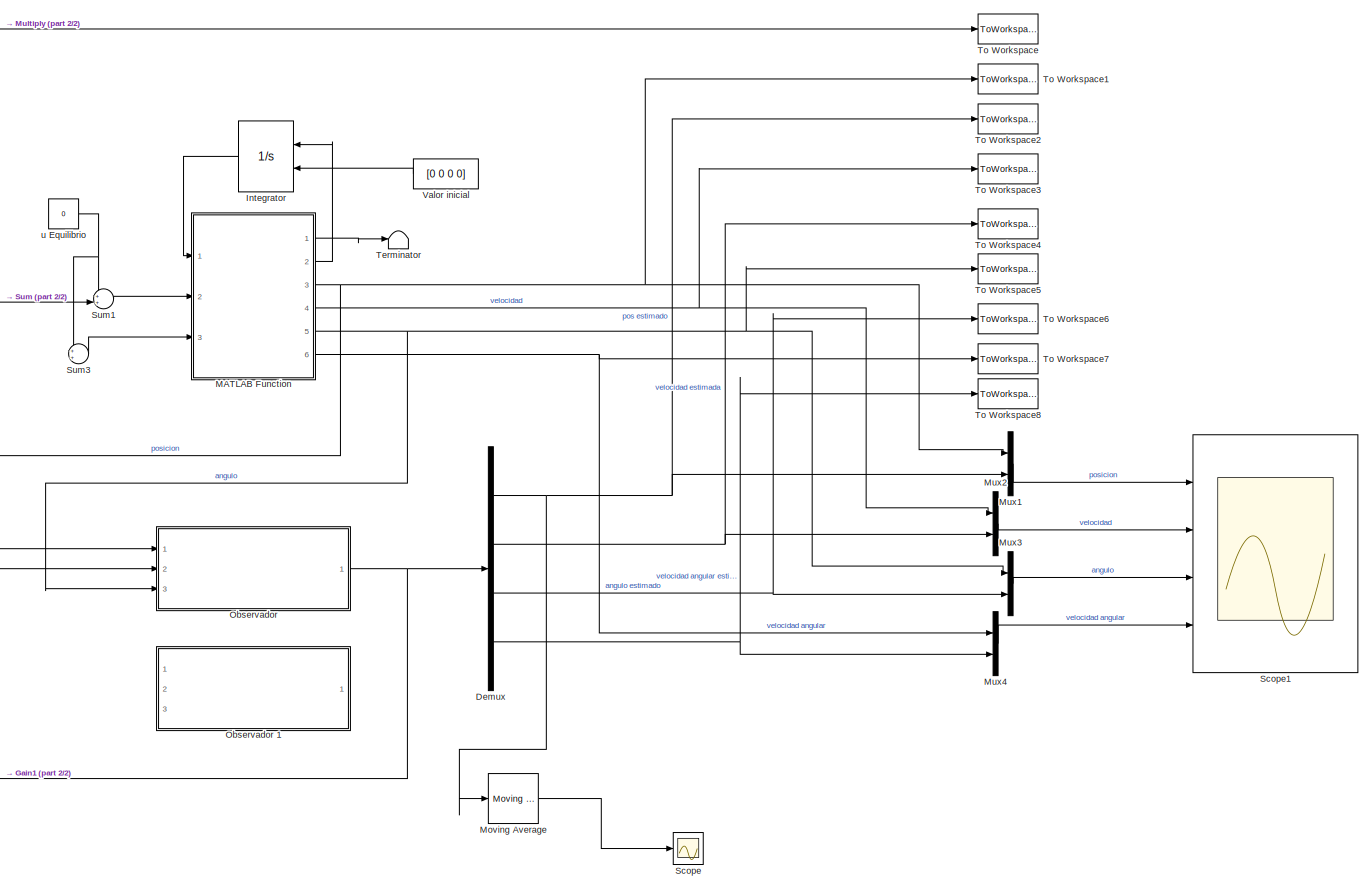
[diagram: root canvas - part 1/2, right side, full height]
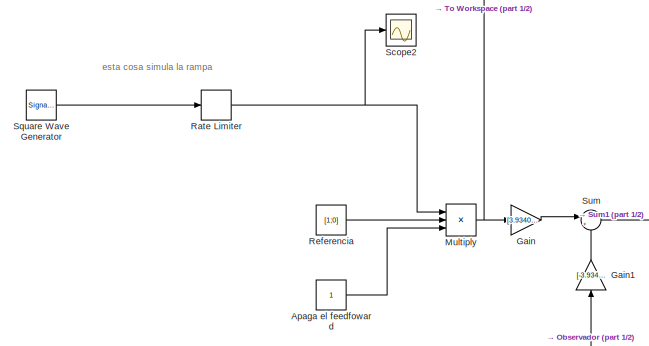
[diagram: root canvas - part 2/2, top left region]
MODEL slx_c159672f334e
KIND model
CONFIG AbsTol = auto
CONFIG EnableMultiTasking = off
CONFIG FixedStep = 0.02
CONFIG MaxStep = auto
CONFIG MinStep = auto
CONFIG RelTol = 1e-3
CONFIG SampleTimeConstraint = Unconstrained
CONFIG Solver = ode4
CONFIG SolverName = ode4
CONFIG StartTime = 0.0
CONFIG StopTime = 10
BLOCK [Constant] Apaga el feedfoward
BLOCK [Demux] Demux
  Ports = [1, 4]
BLOCK [Gain] Gain
  Gain = [3.9340 0]
  Multiplication = Matrix(K*u)
BLOCK [Gain] Gain1
  Gain = [-3.9340, -0.9499, -0.8737, -0.0781]
  Multiplication = Matrix(K*u)
BLOCK [Integrator] Integrator
  InitialConditionSource = external
  Ports = [2, 1]
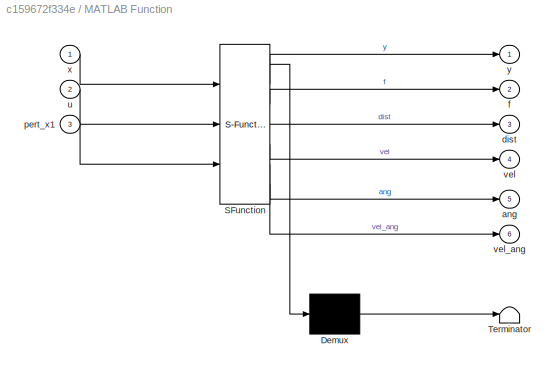
BLOCK [SubSystem] MATLAB Function
  ErrorFcn = Stateflow.Translate.translate
  PermitHierarchicalResolution = ExplicitOnly
  Ports = [3, 6]
  SFBlockType = MATLAB Function
  TreatAsAtomicUnit = on
BLOCK [Demux] MATLAB Function/ Demux 
  Outputs = 1
  Ports = [1, 1]
BLOCK [S-Function] MATLAB Function/ SFunction 
  EnableBusSupport = on
  FunctionName = sf_sfun
  PortCounts = [3 7]
  Ports = [3, 7]
  SFcnIsStateOwnerBlock = off
  SFunctionDeploymentMode = off
  Tag = Stateflow S-Function simulink_Feedback_con_y_sin_feedthrough_2017a 2
BLOCK [Terminator] MATLAB Function/ Terminator 
BLOCK [Outport] MATLAB Function/ang
  Port = 5
BLOCK [Outport] MATLAB Function/dist
  Port = 3
BLOCK [Outport] MATLAB Function/f
  Port = 2
BLOCK [Inport] MATLAB Function/pert_x1
  Port = 3
BLOCK [Inport] MATLAB Function/u
  Port = 2
BLOCK [Outport] MATLAB Function/vel
  Port = 4
BLOCK [Outport] MATLAB Function/vel_ang
  Port = 6
BLOCK [Inport] MATLAB Function/x
BLOCK [Outport] MATLAB Function/y
BLOCK [Reference] Moving Average  REF=dspstat3/Moving
Average
  Ports = [1, 1]
  SourceBlock = dspstat3/Moving\nAverage
  SourceType = dsp.simulink.MovingAverage
BLOCK [Product] Multiply
  Inputs = 3
  Ports = [3, 1]
BLOCK [Mux] Mux1
  DisplayOption = bar
  Inputs = 2
  Ports = [2, 1]
BLOCK [Mux] Mux2
  DisplayOption = bar
  Inputs = 2
  Ports = [2, 1]
BLOCK [Mux] Mux3
  DisplayOption = bar
  Inputs = 2
  Ports = [2, 1]
BLOCK [Mux] Mux4
  DisplayOption = bar
  Inputs = 2
  Ports = [2, 1]
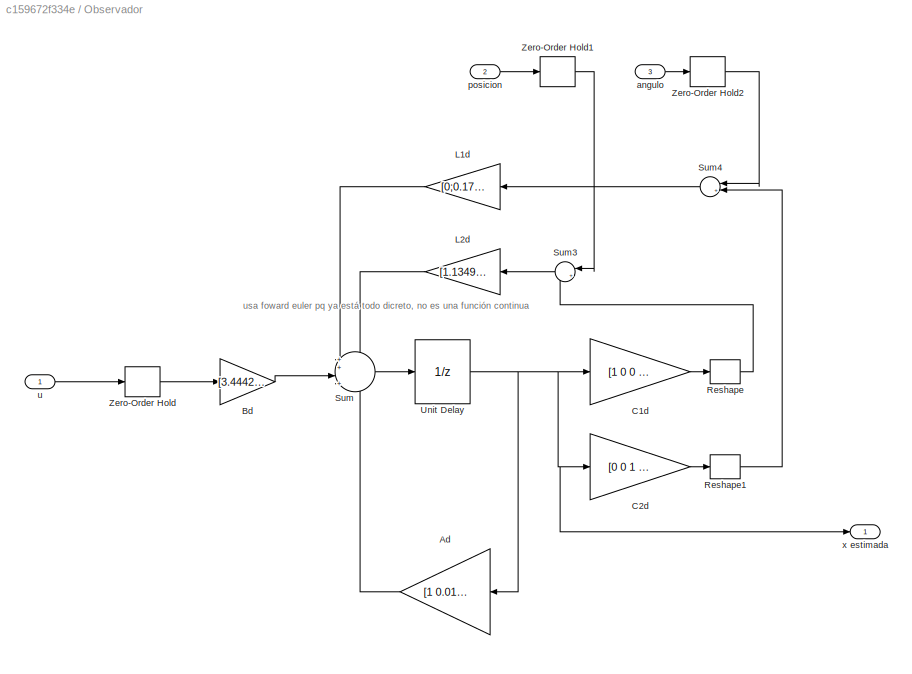
BLOCK [SubSystem] Observador 
  Ports = [3, 1]
BLOCK [Gain] Observador /Ad
  Gain = [1 0.0192570828996483 0.00170448697227250 1.03558375157804e-05;0 0.926639757552132 0.167521537510989 0.00148970690219522;0 0 0.973102548548734 0.0162030728429044;0 0 -2.50301828662619 0.637050817786896]
  Multiplication = Matrix(K*u)
BLOCK [Gain] Observador /Bd
  Gain = [3.44428611496063e-06;0.000671990296398989;0.0112985384629050;1.05141739677607]
  Multiplication = Matrix(K*u)
BLOCK [Gain] Observador /C1d
  Gain = [1 0 0 0]
  Multiplication = Matrix(K*u)
BLOCK [Gain] Observador /C2d
  Gain = [0 0 1 0]
  Multiplication = Matrix(K*u)
BLOCK [Gain] Observador /L1d
  Gain = [0;0.175600000000000;0.796300000000000;-1.30040000000000]
BLOCK [Gain] Observador /L2d
  Gain = [1.13490000000000;13.9806000000000;0;0]
BLOCK [Reshape] Observador /Reshape
  Ports = [1, 1]
BLOCK [Reshape] Observador /Reshape1
  OutputDimensions = [1]
  Ports = [1, 1]
BLOCK [Sum] Observador /Sum
  Inputs = ++|+|+
  Ports = [4, 1]
BLOCK [Sum] Observador /Sum3
  Inputs = |+-
  Ports = [2, 1]
BLOCK [Sum] Observador /Sum4
  Inputs = |+-
  Ports = [2, 1]
BLOCK [UnitDelay] Observador /Unit Delay
  HasFrameUpgradeWarning = on
  SampleTime = 0.02
BLOCK [ZeroOrderHold] Observador /Zero-Order Hold
  SampleTime = 0.02
BLOCK [ZeroOrderHold] Observador /Zero-Order Hold1
  SampleTime = 0.02
BLOCK [ZeroOrderHold] Observador /Zero-Order Hold2
  SampleTime = 0.02
BLOCK [Inport] Observador /angulo
  Port = 3
BLOCK [Inport] Observador /posicion
  Port = 2
BLOCK [Inport] Observador /u
BLOCK [Outport] Observador /x estimada
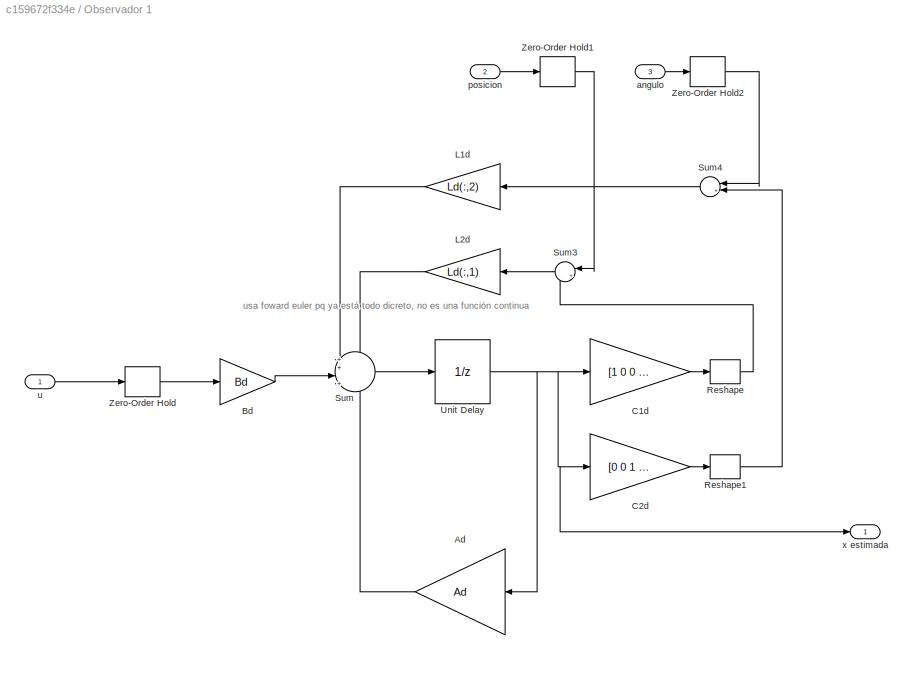
BLOCK [SubSystem] Observador 1
  Commented = on
  Ports = [3, 1]
BLOCK [Gain] Observador 1/Ad
  Gain = Ad
  Multiplication = Matrix(K*u)
BLOCK [Gain] Observador 1/Bd
  Gain = Bd
  Multiplication = Matrix(K*u)
BLOCK [Gain] Observador 1/C1d
  Gain = [1 0 0 0]
  Multiplication = Matrix(K*u)
BLOCK [Gain] Observador 1/C2d
  Gain = [0 0 1 0]
  Multiplication = Matrix(K*u)
BLOCK [Gain] Observador 1/L1d
  Gain = Ld(:,2)
BLOCK [Gain] Observador 1/L2d
  Gain = Ld(:,1)
BLOCK [Reshape] Observador 1/Reshape
  Ports = [1, 1]
BLOCK [Reshape] Observador 1/Reshape1
  OutputDimensions = [1]
  Ports = [1, 1]
BLOCK [Sum] Observador 1/Sum
  Inputs = ++|+|+
  Ports = [4, 1]
BLOCK [Sum] Observador 1/Sum3
  Inputs = |+-
  Ports = [2, 1]
BLOCK [Sum] Observador 1/Sum4
  Inputs = |+-
  Ports = [2, 1]
BLOCK [UnitDelay] Observador 1/Unit Delay
  HasFrameUpgradeWarning = on
  SampleTime = 0.02
BLOCK [ZeroOrderHold] Observador 1/Zero-Order Hold
  SampleTime = 0.02
BLOCK [ZeroOrderHold] Observador 1/Zero-Order Hold1
  SampleTime = 0.02
BLOCK [ZeroOrderHold] Observador 1/Zero-Order Hold2
  SampleTime = 0.02
BLOCK [Inport] Observador 1/angulo
  Port = 3
BLOCK [Inport] Observador 1/posicion
  Port = 2
BLOCK [Inport] Observador 1/u
BLOCK [Outport] Observador 1/x estimada
BLOCK [RateLimiter] Rate Limiter
  FallingSlewLimit = -0.1
  RisingSlewLimit = 0.1
  SampleTimeMode = inherited
BLOCK [Constant] Referencia
  Value = [1;0]
BLOCK [Scope] Scope
  Floating = off
  NumInputPorts = 1
  Ports = [1]
  ScopeSpecificationString = Simulink.scopes.TimeScopeBlockCfg('CurrentConfiguration', extmgr.ConfigurationSet(extmgr.Configuration('Core','General UI',true),extmgr.Configuration('Core','Source UI',true),extmgr.Configuration('Sources','WiredSimulink',true,'DataLoggingVariableName','ScopeData1'),extmgr.Configuration('Visuals','Time Domain',true),extmgr.Configuration('Tools','Plot Navigation',true),extmgr.Configuration('Tools',...<+40ch>
BLOCK [Scope] Scope1
  Floating = off
  NumInputPorts = 4
  Ports = [4]
  ScopeSpecificationString = Simulink.scopes.TimeScopeBlockCfg('CurrentConfiguration', extmgr.ConfigurationSet(extmgr.Configuration('Core','General UI',true,'FigureColor',[0.8 0.8 0.8]),extmgr.Configuration('Core','Source UI',true),extmgr.Configuration('Sources','WiredSimulink',true,'DataLoggingVariableName','ScopeData1'),extmgr.Configuration('Visuals','Time Domain',true,'SerializedDisplays',{struct('MinYLimReal','-0.1001','M...<+4721ch>
BLOCK [Scope] Scope2
  Floating = off
  NumInputPorts = 1
  Ports = [1]
  ScopeSpecificationString = Simulink.scopes.TimeScopeBlockCfg('CurrentConfiguration', extmgr.ConfigurationSet(extmgr.Configuration('Core','General UI',true),extmgr.Configuration('Core','Source UI',true),extmgr.Configuration('Sources','WiredSimulink',true,'DataLoggingVariableName','ScopeData2'),extmgr.Configuration('Visuals','Time Domain',true,'SerializedDisplays',{struct('MinYLimReal','-0.1','MaxYLimReal','0.1','YLabelReal',...<+1376ch>
BLOCK [SignalGenerator] Square Wave Generator
  Amplitude = -0.08
  Frequency = 0.125
  Ports = [0, 1]
  WaveForm = square
BLOCK [Sum] Sum
  Inputs = |++
  Ports = [2, 1]
BLOCK [Sum] Sum1
  Inputs = ++|
  Ports = [2, 1]
BLOCK [Sum] Sum3
  Inputs = ++|
  Ports = [2, 1]
BLOCK [Terminator] Terminator
BLOCK [ToWorkspace] To Workspace
  FixptAsFi = on
  MaxDataPoints = inf
  Ports = [1]
  SampleTime = 0.02
  VariableName = ref
BLOCK [ToWorkspace] To Workspace1
  FixptAsFi = on
  MaxDataPoints = inf
  Ports = [1]
  SampleTime = 0.02
  VariableName = dist_real
BLOCK [ToWorkspace] To Workspace2
  FixptAsFi = on
  MaxDataPoints = inf
  Ports = [1]
  SampleTime = 0.02
  VariableName = dist_obs
BLOCK [ToWorkspace] To Workspace3
  FixptAsFi = on
  MaxDataPoints = inf
  Ports = [1]
  SampleTime = 0.02
  VariableName = vel_real
BLOCK [ToWorkspace] To Workspace4
  FixptAsFi = on
  MaxDataPoints = inf
  Ports = [1]
  SampleTime = 0.02
  VariableName = vel_obs
BLOCK [ToWorkspace] To Workspace5
  FixptAsFi = on
  MaxDataPoints = inf
  Ports = [1]
  SampleTime = 0.02
  VariableName = angulo_real
BLOCK [ToWorkspace] To Workspace6
  FixptAsFi = on
  MaxDataPoints = inf
  Ports = [1]
  SampleTime = 0.02
  VariableName = angulo_obs
BLOCK [ToWorkspace] To Workspace7
  FixptAsFi = on
  MaxDataPoints = inf
  Ports = [1]
  SampleTime = 0.02
  VariableName = velang_real
BLOCK [ToWorkspace] To Workspace8
  FixptAsFi = on
  MaxDataPoints = inf
  Ports = [1]
  SampleTime = 0.02
  VariableName = velang_obs
BLOCK [Constant] Valor inicial
  Value = [0 0 0 0]
BLOCK [Constant] u Equilibrio
  Value = 0
ANNOTATION (root): esta cosa simula la rampa
ANNOTATION Observador : usa foward euler pq ya está todo dicreto, no es una función continua
ANNOTATION Observador 1: usa foward euler pq ya está todo dicreto, no es una función continua
LINE Apaga el feedfoward:1 -> Multiply:3
NET Demux:1 -> Moving Average:1, Mux1:2, To Workspace2:1
NET Demux:2 -> Mux2:2, To Workspace4:1
NET Demux:3 -> Mux3:2, To Workspace6:1
NET Demux:4 -> Mux4:2, To Workspace8:1
LINE Gain1:1 -> Sum:2
LINE Gain:1 -> Sum:1
LINE Integrator:1 -> MATLAB Function:1
LINE MATLAB Function:1 -> Terminator:1
LINE MATLAB Function:2 -> Integrator:1
NET MATLAB Function:3 -> Mux1:1, Observador :2, To Workspace1:1
NET MATLAB Function:4 -> Mux2:1, To Workspace3:1
NET MATLAB Function:5 -> Mux3:1, Observador :3, To Workspace5:1
NET MATLAB Function:6 -> Mux4:1, To Workspace7:1
LINE Moving Average:1 -> Scope:1
NET Multiply:1 -> Gain:1, To Workspace:1
LINE Mux1:1 -> Scope1:1
LINE Mux2:1 -> Scope1:2
LINE Mux3:1 -> Scope1:3
LINE Mux4:1 -> Scope1:4
LINE Observador /Ad:1 -> Observador /Sum:4
LINE Observador /Bd:1 -> Observador /Sum:3
LINE Observador /C1d:1 -> Observador /Reshape:1
LINE Observador /C2d:1 -> Observador /Reshape1:1
LINE Observador /L1d:1 -> Observador /Sum:2
LINE Observador /L2d:1 -> Observador /Sum:1
LINE Observador /Reshape1:1 -> Observador /Sum4:2
LINE Observador /Reshape:1 -> Observador /Sum3:2
LINE Observador /Sum3:1 -> Observador /L2d:1
LINE Observador /Sum4:1 -> Observador /L1d:1
LINE Observador /Sum:1 -> Observador /Unit Delay:1
NET Observador /Unit Delay:1 -> Observador /Ad:1, Observador /C1d:1, Observador /C2d:1, Observador /x estimada:1
LINE Observador /Zero-Order Hold1:1 -> Observador /Sum3:1
LINE Observador /Zero-Order Hold2:1 -> Observador /Sum4:1
LINE Observador /Zero-Order Hold:1 -> Observador /Bd:1
LINE Observador /angulo:1 -> Observador /Zero-Order Hold2:1
LINE Observador /posicion:1 -> Observador /Zero-Order Hold1:1
LINE Observador /u:1 -> Observador /Zero-Order Hold:1
LINE Observador 1/Ad:1 -> Observador 1/Sum:4
LINE Observador 1/Bd:1 -> Observador 1/Sum:3
LINE Observador 1/C1d:1 -> Observador 1/Reshape:1
LINE Observador 1/C2d:1 -> Observador 1/Reshape1:1
LINE Observador 1/L1d:1 -> Observador 1/Sum:2
LINE Observador 1/L2d:1 -> Observador 1/Sum:1
LINE Observador 1/Reshape1:1 -> Observador 1/Sum4:2
LINE Observador 1/Reshape:1 -> Observador 1/Sum3:2
LINE Observador 1/Sum3:1 -> Observador 1/L2d:1
LINE Observador 1/Sum4:1 -> Observador 1/L1d:1
LINE Observador 1/Sum:1 -> Observador 1/Unit Delay:1
NET Observador 1/Unit Delay:1 -> Observador 1/Ad:1, Observador 1/C1d:1, Observador 1/C2d:1, Observador 1/x estimada:1
LINE Observador 1/Zero-Order Hold1:1 -> Observador 1/Sum3:1
LINE Observador 1/Zero-Order Hold2:1 -> Observador 1/Sum4:1
LINE Observador 1/Zero-Order Hold:1 -> Observador 1/Bd:1
LINE Observador 1/angulo:1 -> Observador 1/Zero-Order Hold2:1
LINE Observador 1/posicion:1 -> Observador 1/Zero-Order Hold1:1
LINE Observador 1/u:1 -> Observador 1/Zero-Order Hold:1
NET Observador :1 -> Demux:1, Gain1:1
NET Rate Limiter:1 -> Multiply:1, Scope2:1
LINE Referencia:1 -> Multiply:2
LINE Square Wave Generator:1 -> Rate Limiter:1
LINE Sum1:1 -> MATLAB Function:2
LINE Sum3:1 -> MATLAB Function:3
NET Sum:1 -> Observador :1, Sum1:2
LINE Valor inicial:1 -> Integrator:2
NET u Equilibrio:1 -> Sum1:1, Sum3:1
note: NET lines group one-source signal fan-out (src -> all destinations, sorted); 1:1 wires keep LINE
CHART MATLAB Function states=1 transitions=1
  STATE_LABEL 'eML_blk_kernel()'
  STATE_LABEL 'SCRIPT:\nfunction [y, f,dist,vel,ang,vel_ang] = fcn(x, u, pert_x1)\n    \n    g = 9.81; %kg m/s2\n    m = 0.047; %kg\n    kv = 0.2;\n    R = 0.02;\n    mr = 0.00275;\n    J = 0.5*4*mr*power(R,2);\n    \n    x(1) = x(1) + pert_x1;\n\n    %Dinamica\n    f1 = x(2);\n    f2 = (m*g*sin(x(3)) - kv * x(2)) * 1/(m + (J/power(R,2)));\n    f3 = x(4);\n    f4 = -20.73 * x(4) - 154.47*x(3) + u * 64.89;\n\n    y = x(1);\n    f =...<+80ch>'
